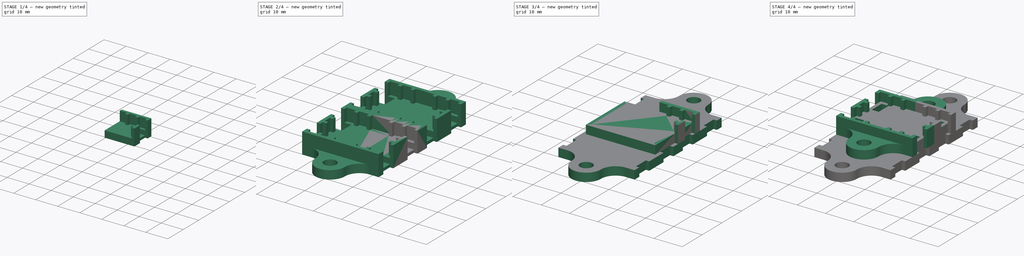
[diagram: build sequence overview — one tinted view per stage of 4, left to right]
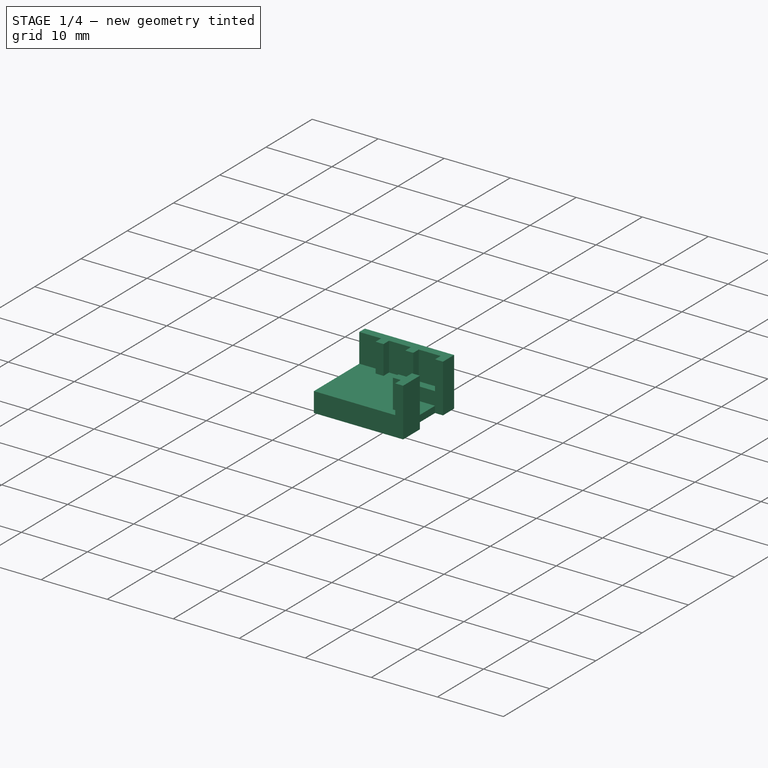
[diagram: stage 1 of 4 — iso view after this stage's code; geometry added in this stage tinted green]
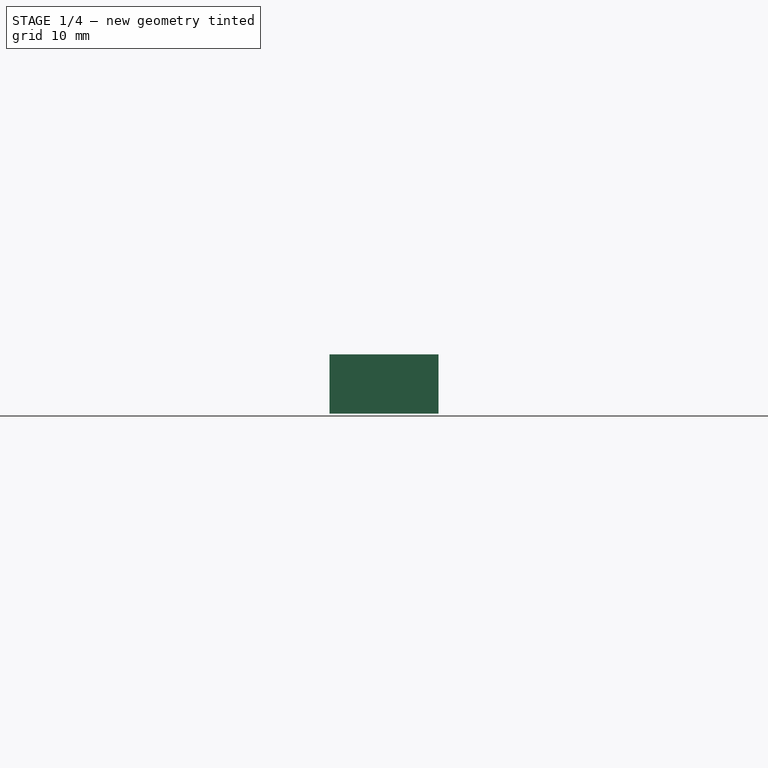
[diagram: stage 1 of 4 — front view after this stage's code; geometry added in this stage tinted green]
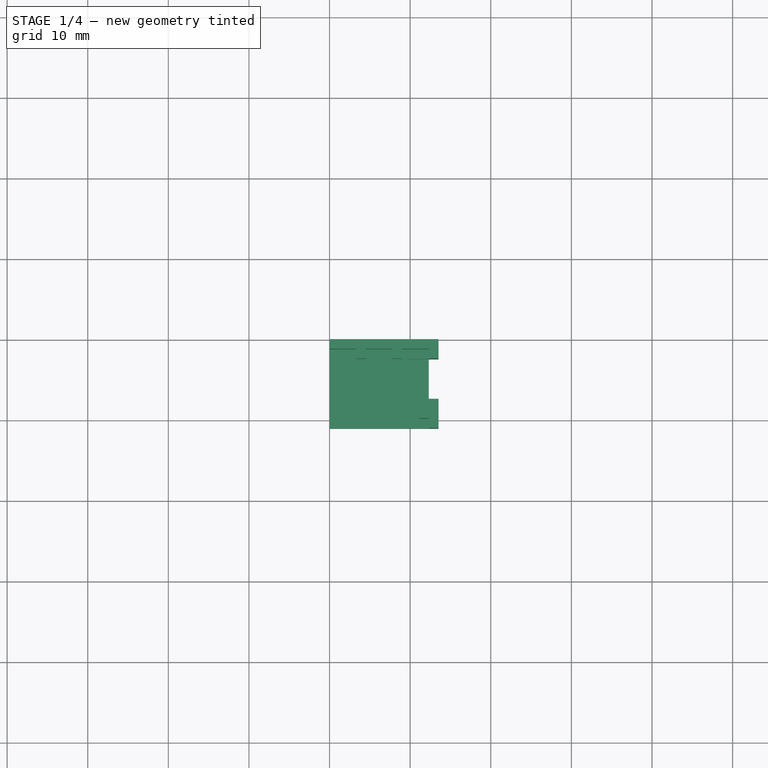
[diagram: stage 1 of 4 — top view after this stage's code; geometry added in this stage tinted green]
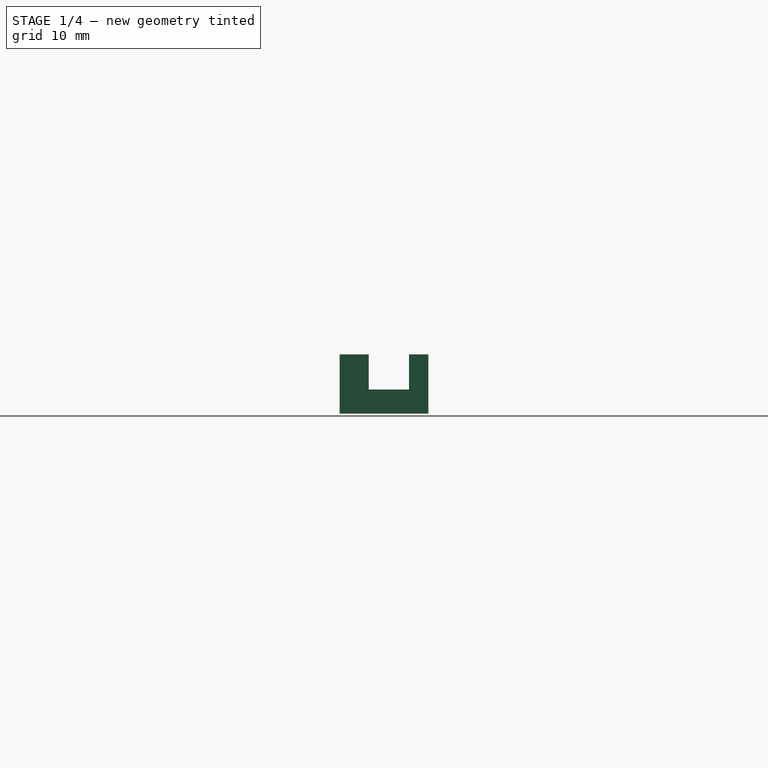
[diagram: stage 1 of 4 — right view after this stage's code; geometry added in this stage tinted green]
FCSTD DOCUMENT  (FreeCAD 0.20R29410 (Git))
Label: HW_133_V1_0
License: All rights reserved
LicenseURL: http://en.wikipedia.org/wiki/All_rights_reserved
objects: Sketcher::SketchObject×9, PartDesign::Pad×8, PartDesign::Mirrored×7, PartDesign::MultiTransform×3, PartDesign::Body×3, PartDesign::Pocket×2, PartDesign::SubShapeBinder×1
note: 43 computed .brp shape members not serialized (recipe doc carries the construction recipe); baked Part::Feature solids carry a one-line shape summary decoded from their .brp

FEATURE [PartDesign::Body] Body
  Group = -> [Sketch,Pad,Sketch001,Sketch002,Sketch003,Pad001,Pad002,Sketch004,Pad003,Pocket,MultiTransform,Mirrored,Mirrored001]
  Origin = -> Origin
  Tip = -> MultiTransform
FEATURE [Sketcher::SketchObject] Sketch005
  AttachmentOffset = pos=(0,-11.01,0) rot=(0,0,1;0rad)
  FullyConstrained = true
  MapMode = 5
  Placement = pos=(0,-11.01,0) rot=(0,0,1;0rad)
  Support = -> [XY_Plane001]
  sketch-geometry (8):
    g0: LineSegment StartX=0 StartY=0 StartZ=0 EndX=11.11 EndY=0 EndZ=0
    g1: LineSegment StartX=11.11 StartY=0 StartZ=0 EndX=11.11 EndY=8.615 EndZ=0
    g2: LineSegment StartX=11.11 StartY=8.615 StartZ=0 EndX=0 EndY=8.615 EndZ=0
    g3: LineSegment StartX=0 StartY=8.615 StartZ=0 EndX=0 EndY=0 EndZ=0
    g4: LineSegment StartX=0 StartY=8.615 StartZ=0 EndX=0 EndY=9.815 EndZ=0
    g5: LineSegment StartX=0 StartY=9.815 StartZ=0 EndX=12.31 EndY=9.815 EndZ=0
    g6: LineSegment StartX=12.31 StartY=9.815 StartZ=0 EndX=12.31 EndY=0 EndZ=0
    g7: LineSegment StartX=12.31 StartY=0 StartZ=0 EndX=11.11 EndY=0 EndZ=0
  constraints (22):
    c: Coincident(g0,g1)
    c: Coincident(g1,g2)
    c: Coincident(g2,g3)
    c: Coincident(g3,g0)
    c: Horizontal(g0)
    c: Horizontal(g2)
    c: Vertical(g1)
    c: Vertical(g3)
    c: Coincident(g0,g-1)
    c: Distance(g1) = 8.615
    c: Distance(g2) = 11.11
    c: Coincident(g4,g3)
    c: PointOnObject(g4,g-2)
    c: Coincident(g5,g4)
    c: Horizontal(g5)
    c: Coincident(g6,g5)
    c: PointOnObject(g6,g-1)
    c: Vertical(g6)
    c: Coincident(g7,g6)
    c: Coincident(g7,g0)
    c: DistanceX(g1,g5) = 1.2
    c: DistanceY(g1,g5) = 1.2
FEATURE [Sketcher::SketchObject] Sketch006
  AttachmentOffset = pos=(0,-11.01,0) rot=(0,0,1;0rad)
  FullyConstrained = true
  MapMode = 5
  Placement = pos=(0,-11.01,0) rot=(0,0,1;0rad)
  Support = -> [XY_Plane001]
  expr: AttachmentOffset = Sketch005.AttachmentOffset
  expr: Constraints[14] = Sketch005.Constraints[20]
  expr: Constraints[15] = Sketch005.Constraints[21]
  expr: Constraints[24] = Sketch005.Constraints[9]
  expr: Constraints[53] = Sketch005.Constraints[10]
  sketch-geometry (29):
    g0: LineSegment StartX=0 StartY=0 StartZ=0 EndX=11.11 EndY=0 EndZ=0
    g1: LineSegment StartX=11.11 StartY=1.2075 StartZ=0 EndX=11.11 EndY=2.4075 EndZ=0
    g2: LineSegment StartX=9.00667 StartY=8.615 StartZ=0 EndX=7.80667 EndY=8.615 EndZ=0
    g3: LineSegment StartX=0 StartY=8.615 StartZ=0 EndX=0 EndY=0 EndZ=0
    g4: LineSegment StartX=0 StartY=8.615 StartZ=0 EndX=0 EndY=9.815 EndZ=0
    g5: LineSegment StartX=0 StartY=9.815 StartZ=0 EndX=3.30333 EndY=9.815 EndZ=0
    g6: LineSegment StartX=12.31 StartY=3.615 StartZ=0 EndX=12.31 EndY=2.4075 EndZ=0
    g7: LineSegment StartX=12.31 StartY=0 StartZ=0 EndX=11.11 EndY=0 EndZ=0
    g8: LineSegment StartX=12.31 StartY=1.2075 StartZ=0 EndX=11.11 EndY=1.2075 EndZ=0
    g9: LineSegment StartX=12.31 StartY=2.4075 StartZ=0 EndX=11.11 EndY=2.4075 EndZ=0
    g10: LineSegment StartX=12.31 StartY=1.2075 StartZ=0 EndX=12.31 EndY=0 EndZ=0
    g11: LineSegment StartX=12.31 StartY=0 StartZ=0 EndX=13.51 EndY=0 EndZ=0
    g12: LineSegment StartX=13.51 StartY=0 StartZ=0 EndX=13.51 EndY=3.615 EndZ=0
    g13: LineSegment StartX=13.51 StartY=3.615 StartZ=0 EndX=12.31 EndY=3.615 EndZ=0
    g14: LineSegment StartX=3.30333 StartY=9.815 StartZ=0 EndX=3.30333 EndY=8.615 EndZ=0
    g15: LineSegment StartX=4.50333 StartY=9.815 StartZ=0 EndX=4.50333 EndY=8.615 EndZ=0
    g16: LineSegment StartX=7.80667 StartY=9.815 StartZ=0 EndX=7.80667 EndY=8.615 EndZ=0
    g17: LineSegment StartX=9.00667 StartY=9.815 StartZ=0 EndX=9.00667 EndY=8.615 EndZ=0
    g18: LineSegment StartX=9.00667 StartY=9.815 StartZ=0 EndX=12.31 EndY=9.815 EndZ=0
    g19: LineSegment StartX=4.50333 StartY=9.815 StartZ=0 EndX=7.80667 EndY=9.815 EndZ=0
    g20: LineSegment StartX=4.50333 StartY=8.615 StartZ=0 EndX=3.30333 EndY=8.615 EndZ=0
    g21: GeomPoint X=11.11 Y=8.615 Z=0
    g22: LineSegment StartX=0 StartY=9.815 StartZ=0 EndX=0 EndY=11.015 EndZ=0
    g23: LineSegment StartX=0 StartY=11.015 StartZ=0 EndX=13.51 EndY=11.015 EndZ=0
    g24: LineSegment StartX=13.51 StartY=11.015 StartZ=0 EndX=13.51 EndY=8.615 EndZ=0
    g25: LineSegment StartX=13.51 StartY=8.615 StartZ=0 EndX=12.31 EndY=8.615 EndZ=0
    g26: LineSegment StartX=12.31 StartY=8.615 StartZ=0 EndX=12.31 EndY=9.815 EndZ=0
    g27: GeomPoint X=-13.51 Y=11.015 Z=0
    g28: GeomPoint X=13.51 Y=-11.015 Z=0
  constraints (82):
    c: Coincident(g3,g0)
    c: Horizontal(g0)
    c: Horizontal(g2)
    c: Vertical(g1)
    c: Vertical(g3)
    c: Coincident(g0,g-1)
    c: Coincident(g4,g3)
    c: PointOnObject(g4,g-2)
    c: Coincident(g5,g4)
    c: Horizontal(g5)
    c: PointOnObject(g10,g-1)
    c: Vertical(g6)
    c: Coincident(g7,g10)
    c: Coincident(g7,g0)
    c: DistanceX(g21,g18) = 1.2
    c: DistanceY(g21,g18) = 1.2
    c: Horizontal(g8)
    c: Horizontal(g9)
    c: Coincident(g6,g9)
    c: Coincident(g10,g8)
    c: Vertical(g10)
    c: Vertical(g8,g9)
    c: Coincident(g1,g9)
    c: Coincident(g1,g8)
    c: DistanceY(g0,g21) = 8.615
    c: Coincident(g10,g11)
    c: PointOnObject(g11,g-1)
    c: Coincident(g11,g12)
    c: Vertical(g12)
    c: Coincident(g12,g13)
    c: Horizontal(g13)
    c: Coincident(g6,g13)
    c: DistanceY(g6,g21) = 5
    c: Equal(g10,g6)
    c: Equal(g9,g1)
    c: DistanceX(g6,g12) = 1.2
    c: DistanceX(g9,g9) = 1.2
    c: Vertical(g1,g0)
    c: Vertical(g14)
    c: Vertical(g15)
    c: Vertical(g16)
    c: Vertical(g17)
    c: Coincident(g19,g16)
    c: Coincident(g18,g17)
    c: Coincident(g5,g14)
    c: Coincident(g19,g15)
    c: Horizontal(g14,g15)
    c: Horizontal(g16,g17)
    c: Horizontal(g19)
    c: Horizontal(g18)
    c: Coincident(g20,g14)
    c: Coincident(g2,g16)
    c: Coincident(g20,g15)
    c: DistanceX(g3,g21) = 11.11
    c: Coincident(g2,g17)
    c: Horizontal(g20)
    c: Horizontal(g15,g16)
    c: Horizontal(g17,g21)
    c: Equal(g5,g19)
    c: Equal(g19,g18)
    c: Equal(g2,g17)
    c: Equal(g20,g15)
    c: Vertical(g21,g1)
    c: Coincident(g5,g22)
    c: PointOnObject(g22,g-2)
    c: Coincident(g22,g23)
    c: Horizontal(g23)
    c: Coincident(g23,g24)
    c: Vertical(g24)
    c: Coincident(g24,g25)
    c: Horizontal(g25)
    c: Coincident(g25,g26)
    c: Coincident(g26,g18)
    c: Vertical(g26)
    c: Vertical(g12,g24)
    c: Equal(g22,g14)
    c: Horizontal(g21,g25)
    c: Horizontal(g3,g14)
    c: Symmetric(g27,g23,g-2)
    c: Symmetric(g23,g28,g-1)
    c: DistanceY(g28,g23) = 22.03  'length'
    c: DistanceX(g27,g23) = 27.02  'width'
FEATURE [PartDesign::Pad] Pad004
  Direction = (0,0,1)
  Length = 3
  Length2 = 10
  Profile = -> Sketch005
  ReferenceAxis = -> Sketch005 [N_Axis]
  Type = 0
FEATURE [PartDesign::Pad] Pad005
  BaseFeature = -> Pad004
  Direction = (0,0,1)
  Length = 7.35
  Length2 = 10
  Profile = -> Sketch006
  ReferenceAxis = -> Sketch006 [N_Axis]
  Type = 0
FEATURE [PartDesign::Mirrored] Mirrored002
  MirrorPlane = -> Sketch005 [V_Axis]
FEATURE [PartDesign::Mirrored] Mirrored003
  MirrorPlane = -> Sketch005 [H_Axis]
FEATURE [PartDesign::Mirrored] Mirrored004
  MirrorPlane = -> XZ_Plane001
FEATURE [Sketcher::SketchObject] Sketch007
  AttachmentOffset = pos=(9.81,-7.4,3) rot=(0,0,1;0rad)
  FullyConstrained = true
  MapMode = 5
  Placement = pos=(9.81,-7.4,3) rot=(0,0,1;0rad)
  Support = -> [XY_Plane001]
  expr: .AttachmentOffset.Base.z = Pad004.Length
  sketch-geometry (4):
    g0: LineSegment StartX=0 StartY=0 StartZ=0 EndX=2.5 EndY=0 EndZ=0
    g1: LineSegment StartX=2.5 StartY=0 StartZ=0 EndX=2.5 EndY=5 EndZ=0
    g2: LineSegment StartX=2.5 StartY=5 StartZ=0 EndX=0 EndY=5 EndZ=0
    g3: LineSegment StartX=0 StartY=5 StartZ=0 EndX=0 EndY=0 EndZ=0
  constraints (11):
    c: Coincident(g0,g1)
    c: Coincident(g1,g2)
    c: Coincident(g2,g3)
    c: Coincident(g3,g0)
    c: Horizontal(g0)
    c: Horizontal(g2)
    c: Vertical(g1)
    c: Vertical(g3)
    c: Coincident(g0,g-1)
    c: DistanceY(g3,g3) = 5
    c: DistanceX(g0,g0) = 2.5
FEATURE [PartDesign::Pocket] Pocket001
  BaseFeature = -> Pad005
  Direction = (0,0,-1)
  Length = 2
  Length2 = 5
  Profile = -> Sketch007
  ReferenceAxis = -> Sketch007 [N_Axis]
  Type = 0
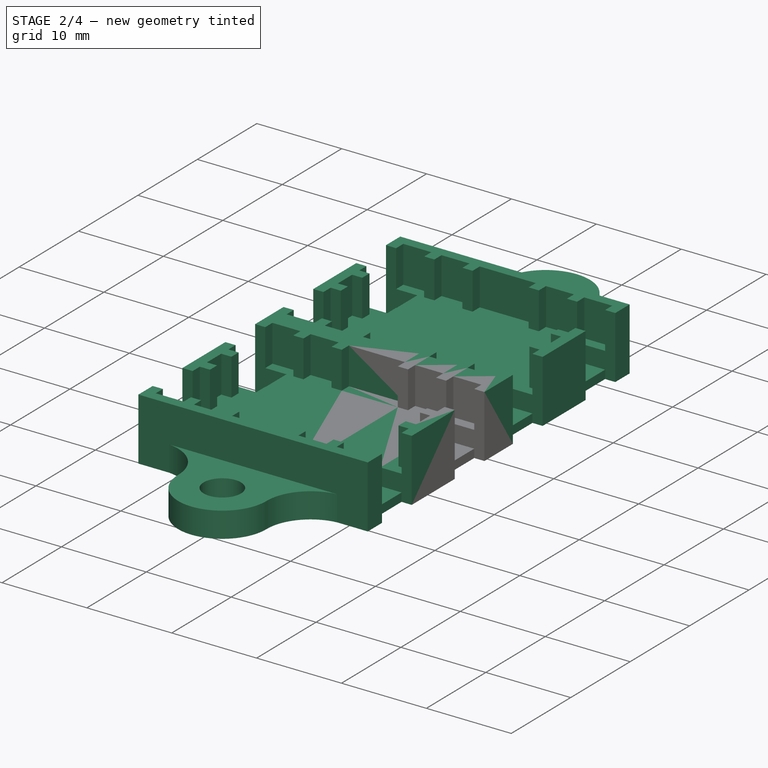
[diagram: stage 2 of 4 — iso view after this stage's code; geometry added in this stage tinted green]
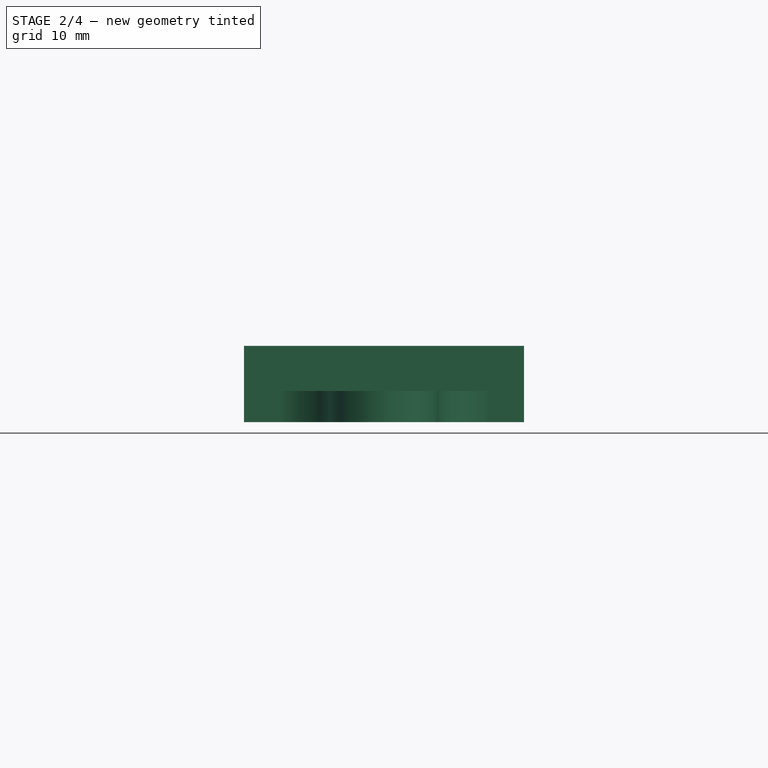
[diagram: stage 2 of 4 — front view after this stage's code; geometry added in this stage tinted green]
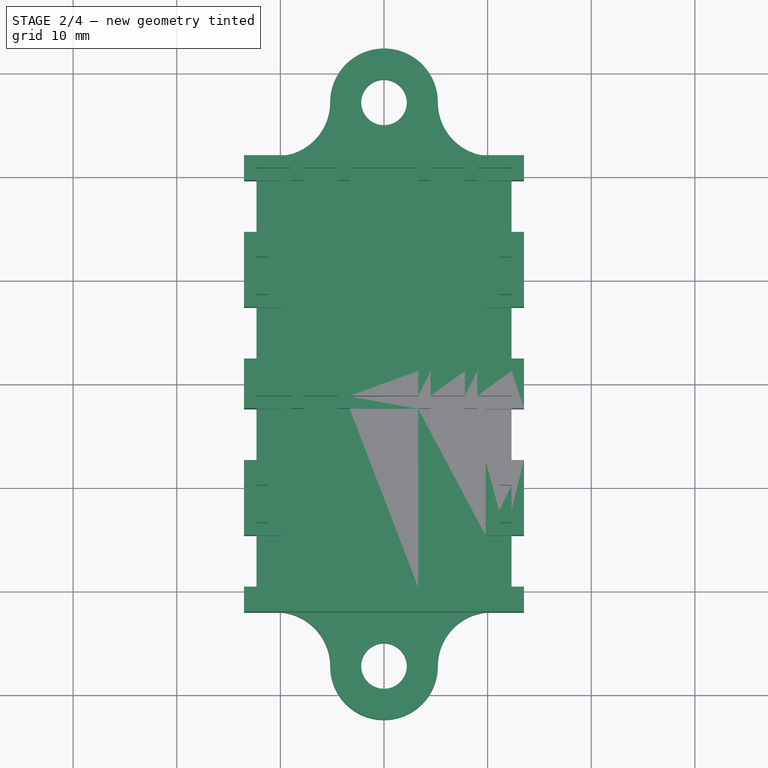
[diagram: stage 2 of 4 — top view after this stage's code; geometry added in this stage tinted green]
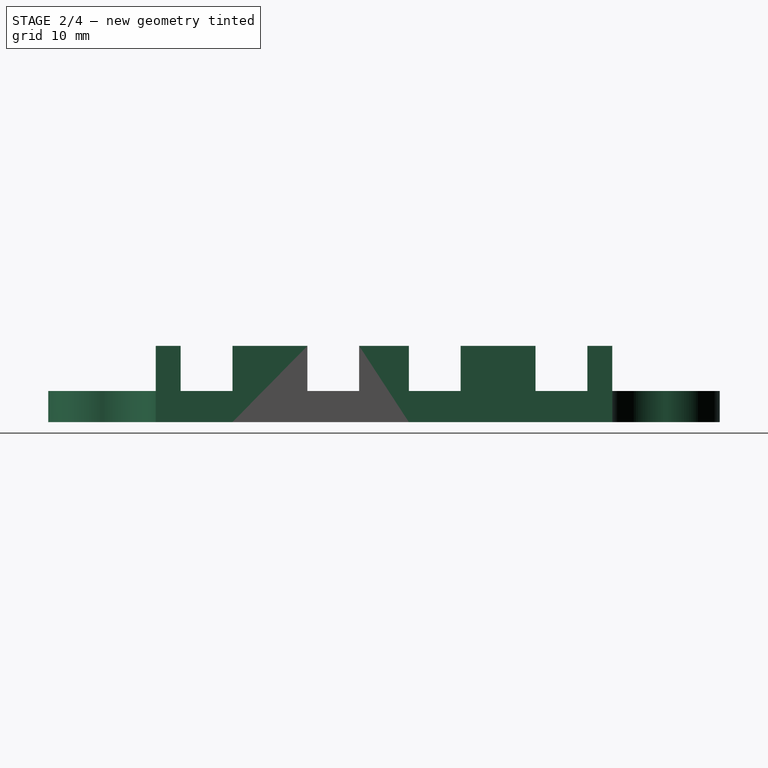
[diagram: stage 2 of 4 — right view after this stage's code; geometry added in this stage tinted green]
FEATURE [PartDesign::MultiTransform] MultiTransform001
  BaseFeature = -> Pocket001
  Originals = -> [Pad004,Pad005,Pocket001]
  Transformations = -> [Mirrored002,Mirrored003,Mirrored004]
FEATURE [Sketcher::SketchObject] Sketch008
  AttachmentOffset = pos=(0,22,0) rot=(0,0,1;0rad)
  FullyConstrained = true
  MapMode = 5
  Placement = pos=(0,22,0) rot=(0,0,1;0rad)
  Support = -> [XY_Plane001]
  sketch-geometry (6):
    g0: ArcOfCircle CenterX=0 CenterY=5.2 CenterZ=0 NormalX=0 NormalY=0 NormalZ=1 AngleXU=0 Radius=2.2 StartAngle=4.71239 EndAngle=7.85398
    g1: ArcOfCircle CenterX=0 CenterY=5.2 CenterZ=0 NormalX=0 NormalY=0 NormalZ=1 AngleXU=0 Radius=5.2 StartAngle=0 EndAngle=1.5708
    g2: ArcOfCircle CenterX=10.4 CenterY=5.2 CenterZ=0 NormalX=0 NormalY=0 NormalZ=1 AngleXU=0 Radius=5.2 StartAngle=3.14159 EndAngle=4.71239
    g3: LineSegment StartX=10.4 StartY=2.76295e-11 StartZ=0 EndX=0 EndY=0 EndZ=0
    g4: LineSegment StartX=0 StartY=0 StartZ=0 EndX=-4e-16 EndY=3 EndZ=0
    g5: LineSegment StartX=7e-16 StartY=7.4 StartZ=0 EndX=3e-16 EndY=10.4 EndZ=0
  constraints (18):
    c: PointOnObject(g0,g-2)
    c: PointOnObject(g0,g-2)
    c: PointOnObject(g0,g-2)
    c: Coincident(g1,g0)
    c: PointOnObject(g1,g-2)
    c: PointOnObject(g2,g-1)
    c: Coincident(g3,g2)
    c: Coincident(g3,g-1)
    c: Tangent(g3,g2)
    c: Coincident(g4,g3)
    c: Coincident(g4,g0)
    c: Coincident(g5,g0)
    c: Coincident(g5,g1)
    c: Tangent(g2,g1) = 1.5708
    c: Horizontal(g2,g0)
    c: Equal(g4,g5)
    c: Distance(g4) = 3
    c: Diameter(g0) = 4.4
FEATURE [PartDesign::Pad] Pad006
  BaseFeature = -> MultiTransform001
  Direction = (0,0,1)
  Length = 3
  Length2 = 10
  Profile = -> Sketch008
  ReferenceAxis = -> Sketch008 [N_Axis]
  Type = 0
FEATURE [PartDesign::Mirrored] Mirrored005
  MirrorPlane = -> Sketch008 [V_Axis]
FEATURE [PartDesign::Mirrored] Mirrored006
  MirrorPlane = -> XZ_Plane001
FEATURE [PartDesign::MultiTransform] MultiTransform002
  BaseFeature = -> Pad006
  Originals = -> [Pad006]
  Refine = true
  Transformations = -> [Mirrored005,Mirrored006]
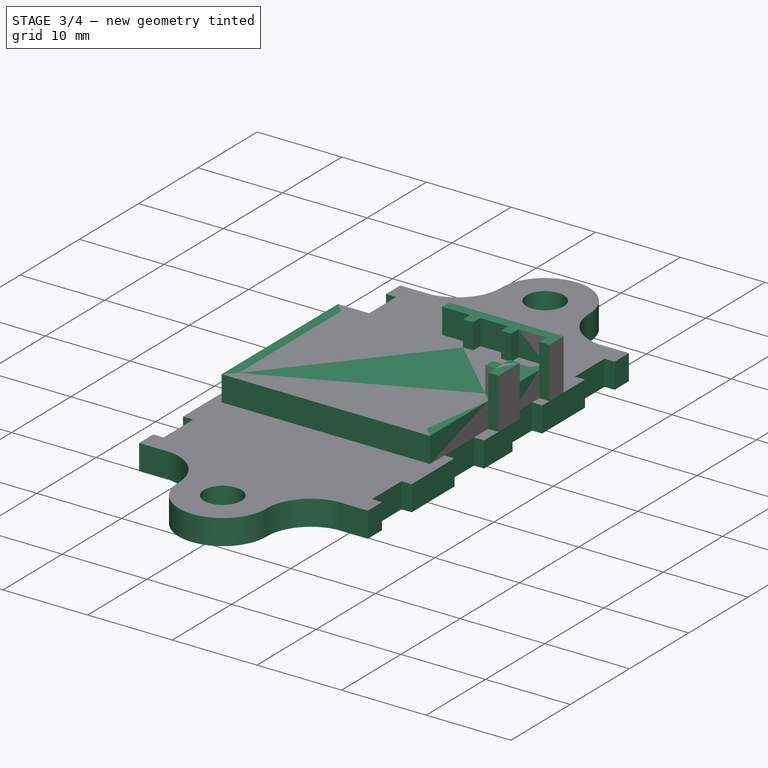
[diagram: stage 3 of 4 — iso view after this stage's code; geometry added in this stage tinted green]
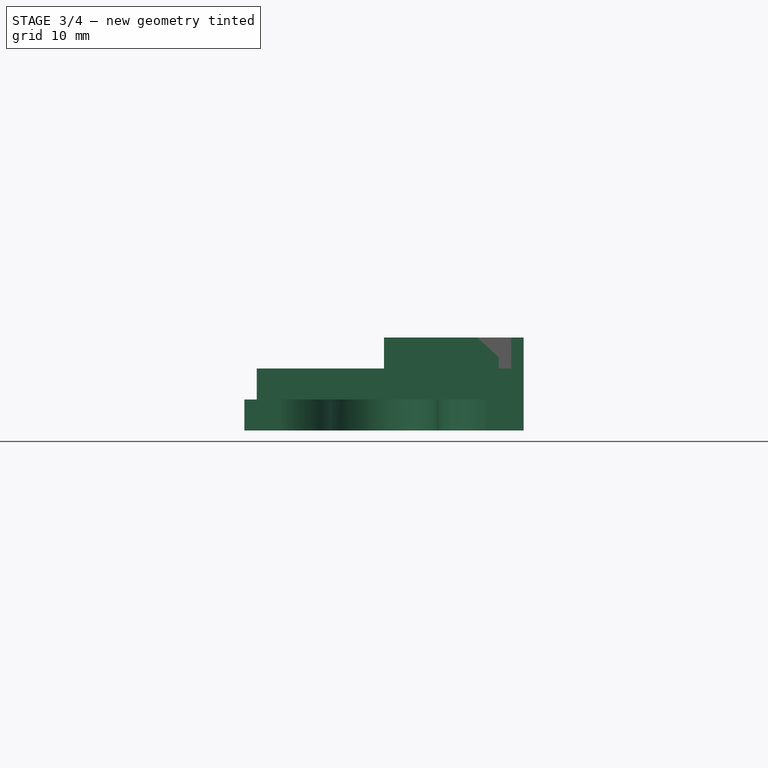
[diagram: stage 3 of 4 — front view after this stage's code; geometry added in this stage tinted green]
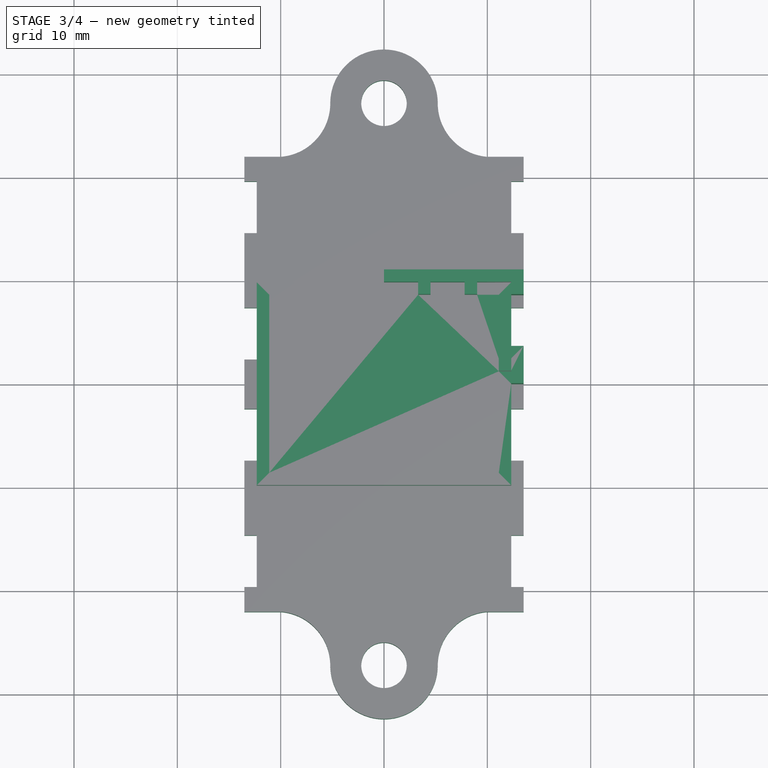
[diagram: stage 3 of 4 — top view after this stage's code; geometry added in this stage tinted green]
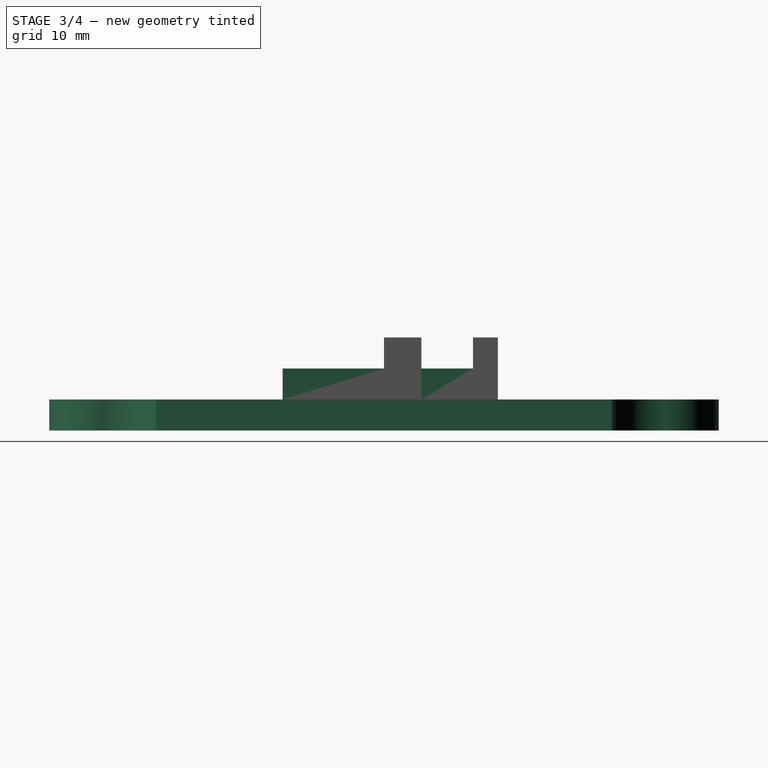
[diagram: stage 3 of 4 — right view after this stage's code; geometry added in this stage tinted green]
FEATURE [Sketcher::SketchObject] Sketch
  FullyConstrained = true
  MapMode = 5
  Support = -> [XY_Plane]
  sketch-geometry (5):
    g0: LineSegment StartX=-11.11 StartY=-8.615 StartZ=0 EndX=-11.11 EndY=8.615 EndZ=0
    g1: LineSegment StartX=-11.11 StartY=8.615 StartZ=0 EndX=11.11 EndY=8.615 EndZ=0
    g2: LineSegment StartX=11.11 StartY=8.615 StartZ=0 EndX=11.11 EndY=-8.615 EndZ=0
    g3: LineSegment StartX=11.11 StartY=-8.615 StartZ=0 EndX=-11.11 EndY=-8.615 EndZ=0
    g4: GeomPoint X=0 Y=0 Z=0
  constraints (12):
    c: Coincident(g0,g1)
    c: Coincident(g1,g2)
    c: Coincident(g2,g3)
    c: Coincident(g3,g0)
    c: Horizontal(g1)
    c: Horizontal(g3)
    c: Vertical(g0)
    c: Vertical(g2)
    c: Symmetric(g1,g0,g4)
    c: Coincident(g4,g-1)
    c: DistanceX(g1,g1) = 22.22  'width'
    c: DistanceY(g2,g2) = 17.23  'length'
FEATURE [PartDesign::Pad] Pad
  Direction = (0,0,1)
  Length = 3
  Length2 = 10
  Profile = -> Sketch
  ReferenceAxis = -> Sketch [N_Axis]
  Type = 0
FEATURE [Sketcher::SketchObject] Sketch001
  AttachmentOffset = pos=(9.86,6.115,3) rot=(0,0,1;0rad)
  FullyConstrained = true
  MapMode = 5
  Placement = pos=(9.86,6.115,3) rot=(0,0,1;0rad)
  Support = -> [XY_Plane]
  expr: .AttachmentOffset.Base.x = Sketch.Constraints.width / 2 - .Constraints.width / 2
  expr: .AttachmentOffset.Base.y = Sketch.Constraints.length / 2 - .Constraints.length / 2
  expr: .AttachmentOffset.Base.z = Pad.Length
  sketch-geometry (5):
    g0: LineSegment StartX=-1.25 StartY=-2.5 StartZ=0 EndX=-1.25 EndY=2.5 EndZ=0
    g1: LineSegment StartX=-1.25 StartY=2.5 StartZ=0 EndX=1.25 EndY=2.5 EndZ=0
    g2: LineSegment StartX=1.25 StartY=2.5 StartZ=0 EndX=1.25 EndY=-2.5 EndZ=0
    g3: LineSegment StartX=1.25 StartY=-2.5 StartZ=0 EndX=-1.25 EndY=-2.5 EndZ=0
    g4: GeomPoint X=0 Y=0 Z=0
  constraints (12):
    c: Coincident(g0,g1)
    c: Coincident(g1,g2)
    c: Coincident(g2,g3)
    c: Coincident(g3,g0)
    c: Horizontal(g1)
    c: Horizontal(g3)
    c: Vertical(g0)
    c: Vertical(g2)
    c: Symmetric(g1,g0,g4)
    c: Coincident(g4,g-1)
    c: DistanceX(g3,g3) = 2.5  'width'
    c: DistanceY(g2,g2) = 5  'length'
FEATURE [Sketcher::SketchObject] Sketch002
  FullyConstrained = true
  MapMode = 5
  Support = -> [XY_Plane]
  expr: Constraints[10] = Sketch.Constraints[10]
  expr: Constraints[11] = Sketch.Constraints[11]
  sketch-geometry (10):
    g0: LineSegment StartX=-11.11 StartY=-8.615 StartZ=0 EndX=-11.11 EndY=8.615 EndZ=0
    g1: LineSegment StartX=-11.11 StartY=8.615 StartZ=0 EndX=11.11 EndY=8.615 EndZ=0
    g2: LineSegment StartX=11.11 StartY=8.615 StartZ=0 EndX=11.11 EndY=-8.615 EndZ=0
    g3: LineSegment StartX=11.11 StartY=-8.615 StartZ=0 EndX=-11.11 EndY=-8.615 EndZ=0
    g4: GeomPoint X=0 Y=0 Z=0
    g5: LineSegment StartX=-12.31 StartY=-9.815 StartZ=0 EndX=-12.31 EndY=9.815 EndZ=0
    g6: LineSegment StartX=-12.31 StartY=9.815 StartZ=0 EndX=12.31 EndY=9.815 EndZ=0
    g7: LineSegment StartX=12.31 StartY=9.815 StartZ=0 EndX=12.31 EndY=-9.815 EndZ=0
    g8: LineSegment StartX=12.31 StartY=-9.815 StartZ=0 EndX=-12.31 EndY=-9.815 EndZ=0
    g9: GeomPoint X=0 Y=0 Z=0
  constraints (26):
    c: Coincident(g0,g1)
    c: Coincident(g1,g2)
    c: Coincident(g2,g3)
    c: Coincident(g3,g0)
    c: Horizontal(g1)
    c: Horizontal(g3)
    c: Vertical(g0)
    c: Vertical(g2)
    c: Symmetric(g1,g0,g4)
    c: Coincident(g4,g-1)
    c: DistanceX(g1,g1) = 22.22
    c: DistanceY(g2,g2) = 17.23
    c: Coincident(g5,g6)
    c: Coincident(g6,g7)
    c: Coincident(g7,g8)
    c: Coincident(g8,g5)
    c: Horizontal(g6)
    c: Horizontal(g8)
    c: Vertical(g5)
    c: Vertical(g7)
    c: Symmetric(g6,g5,g9)
    c: Coincident(g9,g4)
    c: DistanceX(g1,g6) = 1.2
    c: DistanceY(g1,g6) = 1.2
    c: DistanceY(g7,g7) = 19.63  'length'
    c: DistanceX(g6,g6) = 24.62  'width'
FEATURE [Sketcher::SketchObject] Sketch003
  FullyConstrained = true
  MapMode = 5
  Support = -> [XY_Plane]
  expr: .Constraints.width = Sketch.Constraints.width
  expr: Constraints[11] = Sketch.Constraints.length
  expr: Constraints[22] = Sketch002.Constraints[22]
  expr: Constraints[23] = Sketch002.Constraints[23]
  sketch-geometry (33):
    g0: LineSegment StartX=-11.11 StartY=-8.615 StartZ=0 EndX=-11.11 EndY=8.615 EndZ=0
    g1: LineSegment StartX=-11.11 StartY=8.615 StartZ=0 EndX=11.11 EndY=8.615 EndZ=0
    g2: LineSegment StartX=11.11 StartY=8.615 StartZ=0 EndX=11.11 EndY=-8.615 EndZ=0
    g3: LineSegment StartX=11.11 StartY=-8.615 StartZ=0 EndX=-11.11 EndY=-8.615 EndZ=0
    g4: GeomPoint X=0 Y=0 Z=0
    g5: LineSegment StartX=-12.31 StartY=-9.815 StartZ=0 EndX=-12.31 EndY=9.815 EndZ=0
    g6: LineSegment StartX=-12.31 StartY=9.815 StartZ=0 EndX=12.31 EndY=9.815 EndZ=0
    g7: LineSegment StartX=12.31 StartY=9.815 StartZ=0 EndX=12.31 EndY=-9.815 EndZ=0
    g8: LineSegment StartX=12.31 StartY=-9.815 StartZ=0 EndX=-12.31 EndY=-9.815 EndZ=0
    g9: GeomPoint X=0 Y=0 Z=0
    g10: LineSegment StartX=11.11 StartY=2.4075 StartZ=0 EndX=12.31 EndY=2.4075 EndZ=0
    g11: LineSegment StartX=12.31 StartY=1.2075 StartZ=0 EndX=11.11 EndY=1.2075 EndZ=0
    g12: LineSegment StartX=11.11 StartY=1.2075 StartZ=0 EndX=11.11 EndY=2.4075 EndZ=0
    g13: LineSegment StartX=7.80667 StartY=9.815 StartZ=0 EndX=7.80667 EndY=8.615 EndZ=0
    g14: LineSegment StartX=7.80667 StartY=8.615 StartZ=0 EndX=9.00667 EndY=8.615 EndZ=0
    g15: LineSegment StartX=9.00667 StartY=8.615 StartZ=0 EndX=9.00667 EndY=9.815 EndZ=0
    g16: LineSegment StartX=3.30333 StartY=9.815 StartZ=0 EndX=3.30333 EndY=8.615 EndZ=0
    g17: LineSegment StartX=3.30333 StartY=8.615 StartZ=0 EndX=4.50333 EndY=8.615 EndZ=0
    g18: LineSegment StartX=4.50333 StartY=8.615 StartZ=0 EndX=4.50333 EndY=9.815 EndZ=0
    g19: LineSegment StartX=12.31 StartY=1.2075 StartZ=0 EndX=12.31 EndY=0 EndZ=0
    g20: LineSegment StartX=12.31 StartY=0 StartZ=0 EndX=13.51 EndY=0 EndZ=0
    g21: LineSegment StartX=13.51 StartY=11.015 StartZ=0 EndX=0 EndY=11.015 EndZ=0
    g22: LineSegment StartX=0 StartY=11.015 StartZ=0 EndX=0 EndY=9.815 EndZ=0
    g23: LineSegment StartX=0 StartY=9.815 StartZ=0 EndX=3.30333 EndY=9.815 EndZ=0
    g24: LineSegment StartX=4.50333 StartY=9.815 StartZ=0 EndX=7.80667 EndY=9.815 EndZ=0
    g25: LineSegment StartX=9.00667 StartY=9.815 StartZ=0 EndX=12.31 EndY=9.815 EndZ=0
    g26: LineSegment StartX=12.31 StartY=3.615 StartZ=0 EndX=12.31 EndY=2.4075 EndZ=0
    g27: LineSegment StartX=12.31 StartY=9.815 StartZ=0 EndX=12.31 EndY=8.615 EndZ=0
    g28: LineSegment StartX=13.51 StartY=8.615 StartZ=0 EndX=13.51 EndY=11.015 EndZ=0
    g29: LineSegment StartX=13.51 StartY=0 StartZ=0 EndX=13.51 EndY=3.615 EndZ=0
    g30: LineSegment StartX=12.31 StartY=8.615 StartZ=0 EndX=13.51 EndY=8.615 EndZ=0
    g31: LineSegment StartX=12.31 StartY=3.615 StartZ=0 EndX=13.51 EndY=3.615 EndZ=0
    g32: GeomPoint X=0 Y=-11.015 Z=0
  constraints (91):
    c: Coincident(g0,g1)
    c: Coincident(g1,g2)
    c: Coincident(g2,g3)
    c: Coincident(g3,g0)
    c: Horizontal(g1)
    c: Horizontal(g3)
    c: Vertical(g0)
    c: Vertical(g2)
    c: Symmetric(g1,g0,g4)
    c: Coincident(g4,g-1)
    c: DistanceX(g1,g1) = 22.22  'width'
    c: DistanceY(g2,g2) = 17.23
    c: Coincident(g5,g6)
    c: Coincident(g6,g7)
    c: Coincident(g7,g8)
    c: Coincident(g8,g5)
    c: Horizontal(g6)
    c: Horizontal(g8)
    c: Vertical(g5)
    c: Vertical(g7)
    c: Symmetric(g6,g5,g9)
    c: Coincident(g9,g4)
    c: DistanceX(g1,g6) = 1.2
    c: DistanceY(g1,g6) = 1.2
    c: Coincident(g11,g12)
    c: Coincident(g12,g10)
    c: Horizontal(g10)
    c: Horizontal(g11)
    c: Vertical(g12)
    c: PointOnObject(g10,g2)
    c: PointOnObject(g11,g7)
    c: Coincident(g13,g14)
    c: Coincident(g14,g15)
    c: Horizontal(g14)
    c: Vertical(g13)
    c: Vertical(g15)
    c: PointOnObject(g15,g6)
    c: PointOnObject(g13,g1)
    c: Coincident(g16,g17)
    c: Coincident(g17,g18)
    c: Horizontal(g17)
    c: Vertical(g16)
    c: Vertical(g18)
    c: PointOnObject(g18,g6)
    c: PointOnObject(g16,g1)
    c: Equal(g12,g14)
    c: Equal(g14,g17)
    c: DistanceX(g17,g17) = 1.2
    c: Coincident(g11,g19)
    c: PointOnObject(g19,g-1)
    c: Vertical(g19)
    c: Coincident(g19,g20)
    c: PointOnObject(g20,g-1)
    c: Coincident(g20,g29)
    c: Coincident(g28,g21)
    c: PointOnObject(g21,g-2)
    c: Horizontal(g21)
    c: Coincident(g21,g22)
    c: PointOnObject(g22,g-2)
    c: Coincident(g22,g23)
    c: Coincident(g23,g16)
    c: Horizontal(g23)
    c: Coincident(g18,g24)
    c: Coincident(g24,g13)
    c: Horizontal(g24)
    c: Coincident(g25,g15)
    c: Coincident(g25,g6)
    c: Coincident(g27,g25)
    c: Coincident(g26,g10)
    c: DistanceX(g25,g28) = 1.2
    c: DistanceY(g25,g28) = 1.2
    c: Horizontal(g16,g18)
    c: Equal(g23,g24)
    c: Equal(g24,g25)
    c: Vertical(g26)
    c: Vertical(g27)
    c: Vertical(g28)
    c: Vertical(g29)
    c: Coincident(g30,g27)
    c: Coincident(g30,g28)
    c: Horizontal(g30)
    c: Coincident(g31,g26)
    c: Coincident(g31,g29)
    c: Horizontal(g31)
    c: Horizontal(g1,g27)
    c: DistanceY(g26,g27) = 5
    c: Equal(g19,g26)
    c: Vertical(g26,g27)
    c: Vertical(g29,g28)
    c: Symmetric(g32,g21,g4)
    c: DistanceY(g32,g21) = 22.03  'length'
FEATURE [PartDesign::Pad] Pad001
  BaseFeature = -> Pad
  Direction = (0,0,1)
  Length = 3
  Length2 = 10
  Profile = -> Sketch002
  ReferenceAxis = -> Sketch002 [N_Axis]
  Type = 0
  expr: Length = Pad.Length
FEATURE [PartDesign::Pad] Pad002
  BaseFeature = -> Pad001
  Direction = (0,0,1)
  Length = 6
  Length2 = 10
  Profile = -> Sketch003
  ReferenceAxis = -> Sketch003 [N_Axis]
  Type = 0
FEATURE [PartDesign::Body] Body001
  Group = -> [Sketch005,Sketch006,Pad004,Pad005,Sketch007,Pocket001,MultiTransform001,Mirrored002,Mirrored003,Mirrored004,Sketch008,Pad006,MultiTransform002,Mirrored005,Mirrored006]
  Origin = -> Origin001
  Tip = -> MultiTransform002
FEATURE [PartDesign::SubShapeBinder] Binder
  BindCopyOnChange = 0
  BindMode = 0
  ClaimChildren = false
  Context = -> Body002 [Binder.]
  Fuse = false
  MakeFace = true
  OffsetFill = false
  OffsetIntersection = false
  OffsetJoinType = 0
  OffsetOpenResult = false
  PartialLoad = false
  Relative = true
  Support = -> [Body001[MultiTransform002.Face25]]
  _Version = 2
FEATURE [PartDesign::Pad] Pad007
  Direction = (0,0,-1)
  Length = 3
  Length2 = 10
  Profile = -> Binder
  Type = 0
FEATURE [PartDesign::Body] Body002
  Group = -> [Binder,Pad007]
  Origin = -> Origin002
  Tip = -> Pad007
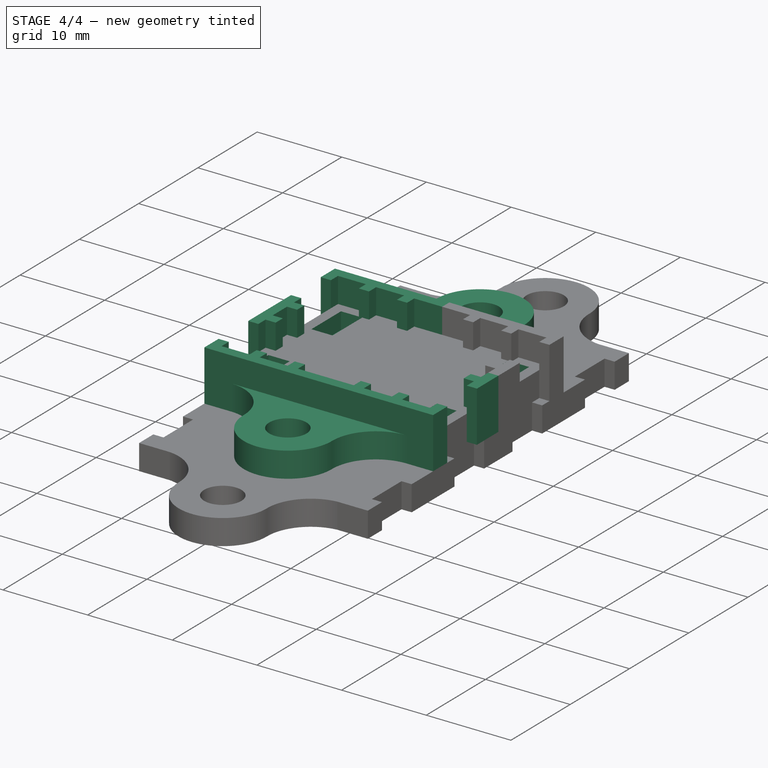
[diagram: stage 4 of 4 — iso view after this stage's code; geometry added in this stage tinted green]
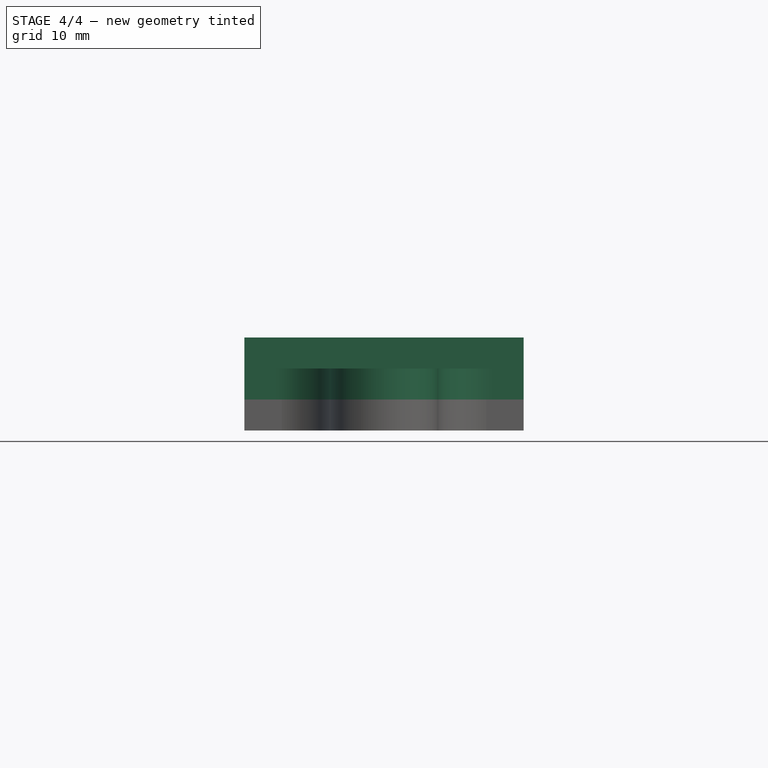
[diagram: stage 4 of 4 — front view after this stage's code; geometry added in this stage tinted green]
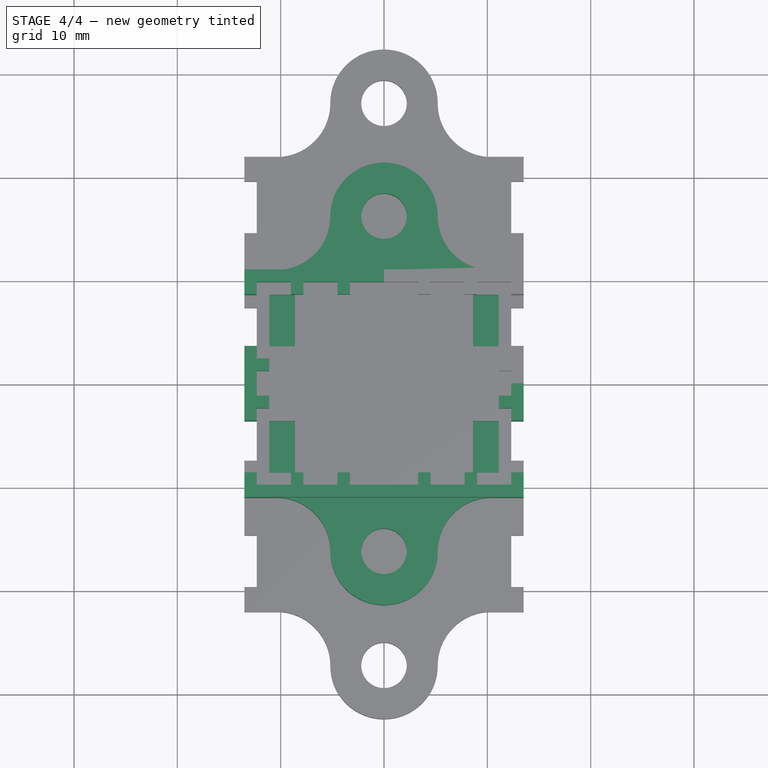
[diagram: stage 4 of 4 — top view after this stage's code; geometry added in this stage tinted green]
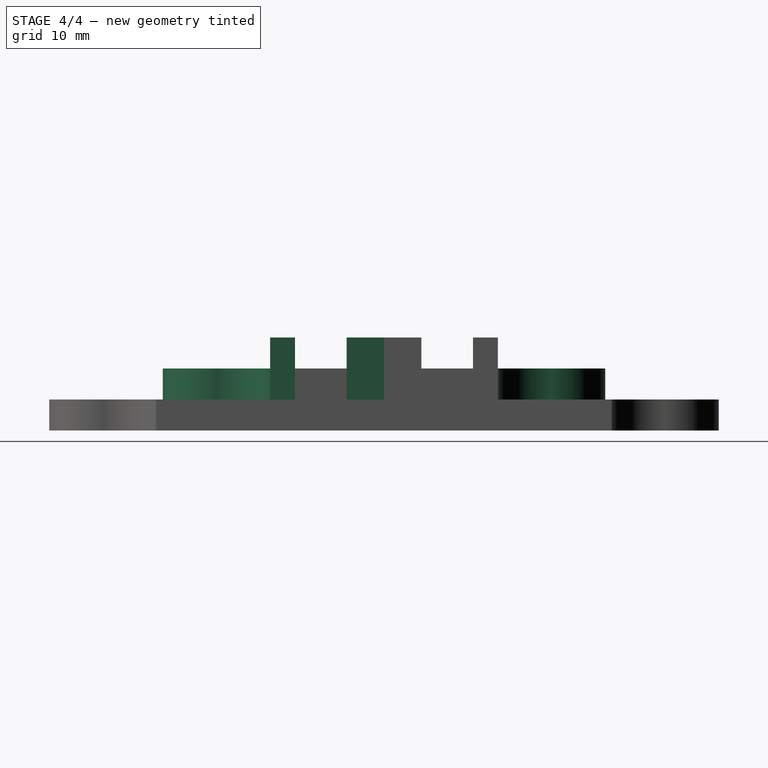
[diagram: stage 4 of 4 — right view after this stage's code; geometry added in this stage tinted green]
FEATURE [PartDesign::Mirrored] Mirrored
  MirrorPlane = -> YZ_Plane
FEATURE [PartDesign::Mirrored] Mirrored001
  MirrorPlane = -> XZ_Plane
FEATURE [Sketcher::SketchObject] Sketch004
  AttachmentOffset = pos=(0,11.015,0) rot=(0,0,1;0rad)
  FullyConstrained = true
  MapMode = 5
  Placement = pos=(0,11.015,0) rot=(0,0,1;0rad)
  Support = -> [XY_Plane]
  expr: .AttachmentOffset.Base.y = Sketch003.Constraints.length / 2
  sketch-geometry (6):
    g0: ArcOfCircle CenterX=0 CenterY=5.2 CenterZ=0 NormalX=0 NormalY=0 NormalZ=1 AngleXU=0 Radius=2.2 StartAngle=4.71239 EndAngle=7.85398
    g1: ArcOfCircle CenterX=0 CenterY=5.2 CenterZ=0 NormalX=0 NormalY=0 NormalZ=1 AngleXU=0 Radius=5.2 StartAngle=0 EndAngle=1.5708
    g2: ArcOfCircle CenterX=10.4 CenterY=5.2 CenterZ=0 NormalX=0 NormalY=0 NormalZ=1 AngleXU=0 Radius=5.2 StartAngle=3.14159 EndAngle=4.71239
    g3: LineSegment StartX=7e-16 StartY=7.4 StartZ=0 EndX=3e-16 EndY=10.4 EndZ=0
    g4: LineSegment StartX=-4e-16 StartY=3 StartZ=0 EndX=0 EndY=0 EndZ=0
    g5: LineSegment StartX=0 StartY=0 StartZ=0 EndX=10.4 EndY=0 EndZ=0
  constraints (18):
    c: PointOnObject(g0,g-2)
    c: PointOnObject(g0,g-2)
    c: PointOnObject(g0,g-2)
    c: Coincident(g1,g0)
    c: PointOnObject(g1,g-2)
    c: PointOnObject(g2,g-1)
    c: Equal(g2,g1)
    c: Tangent(g2,g1) = 1.5708
    c: Diameter(g0) = 4.4
    c: Coincident(g3,g0)
    c: Coincident(g3,g1)
    c: Coincident(g4,g0)
    c: Coincident(g4,g-1)
    c: Coincident(g5,g4)
    c: Coincident(g5,g2)
    c: Tangent(g5,g2)
    c: Distance(g4) = 3
    c: Equal(g4,g3)
FEATURE [PartDesign::Pad] Pad003
  BaseFeature = -> Pad002
  Direction = (0,0,1)
  Length = 3
  Length2 = 10
  Profile = -> Sketch004
  ReferenceAxis = -> Sketch004 [N_Axis]
  Type = 0
FEATURE [PartDesign::Pocket] Pocket
  BaseFeature = -> Pad003
  Direction = (0,0,-1)
  Length = 2
  Length2 = 5
  Profile = -> Sketch001
  ReferenceAxis = -> Sketch001 [N_Axis]
  Type = 0
FEATURE [PartDesign::MultiTransform] MultiTransform
  BaseFeature = -> Pocket
  Originals = -> [Pad002,Pocket,Pad003]
  Transformations = -> [Mirrored,Mirrored001]
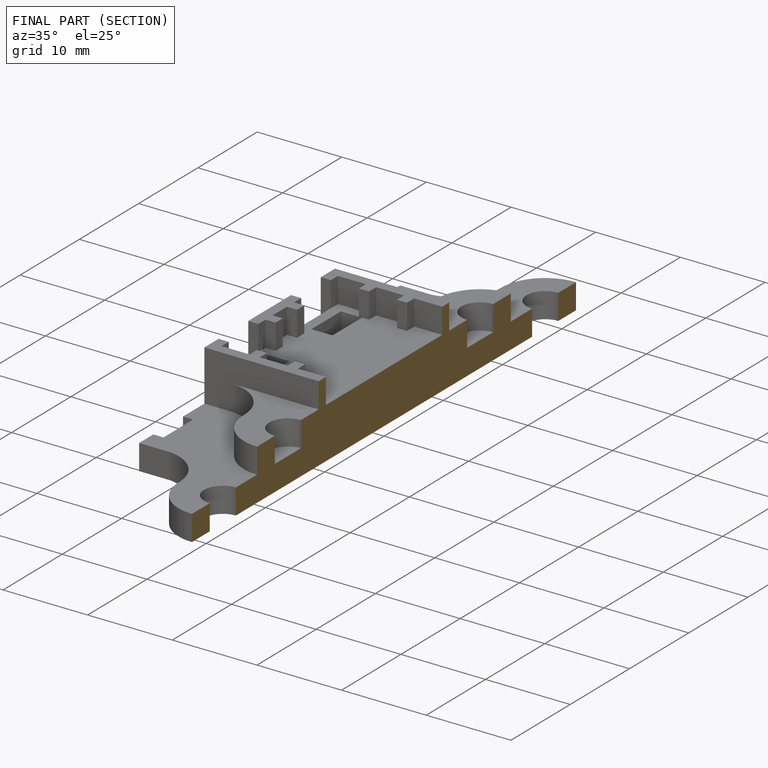
[diagram: finished part — half-section view (interior)]
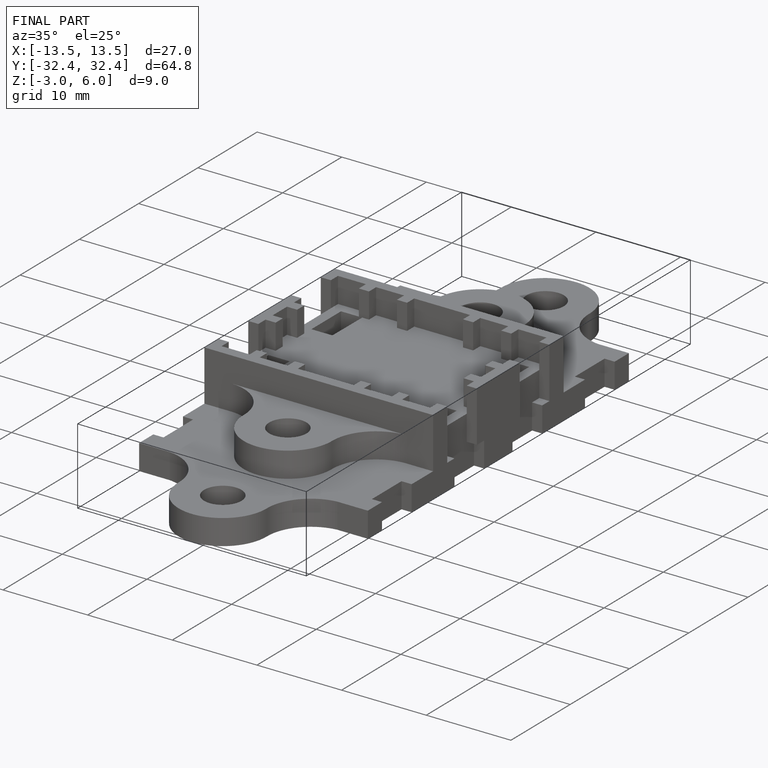
[diagram: finished part — iso view with bounding-box wireframe]
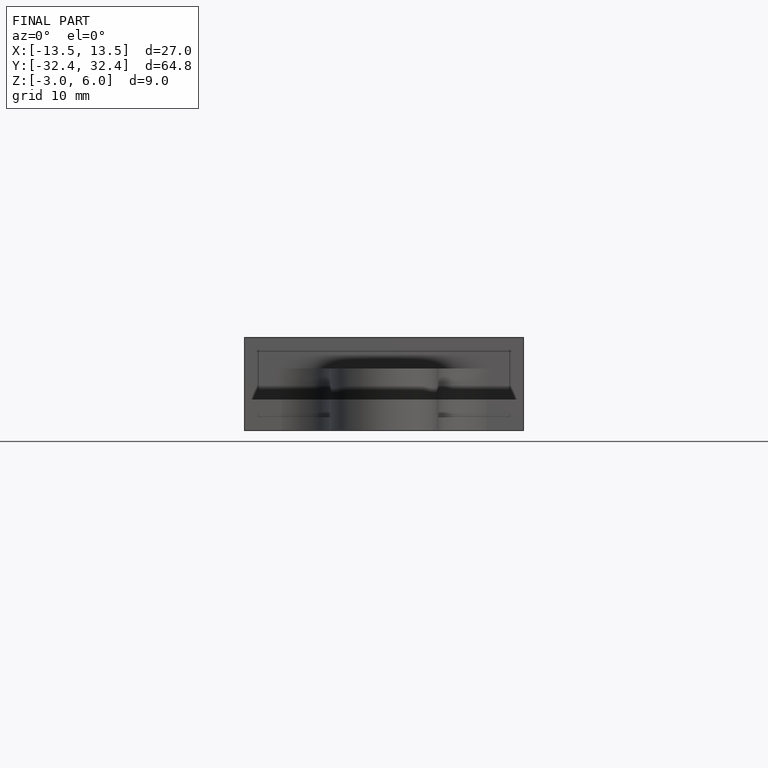
[diagram: finished part — front view with bounding-box wireframe]
